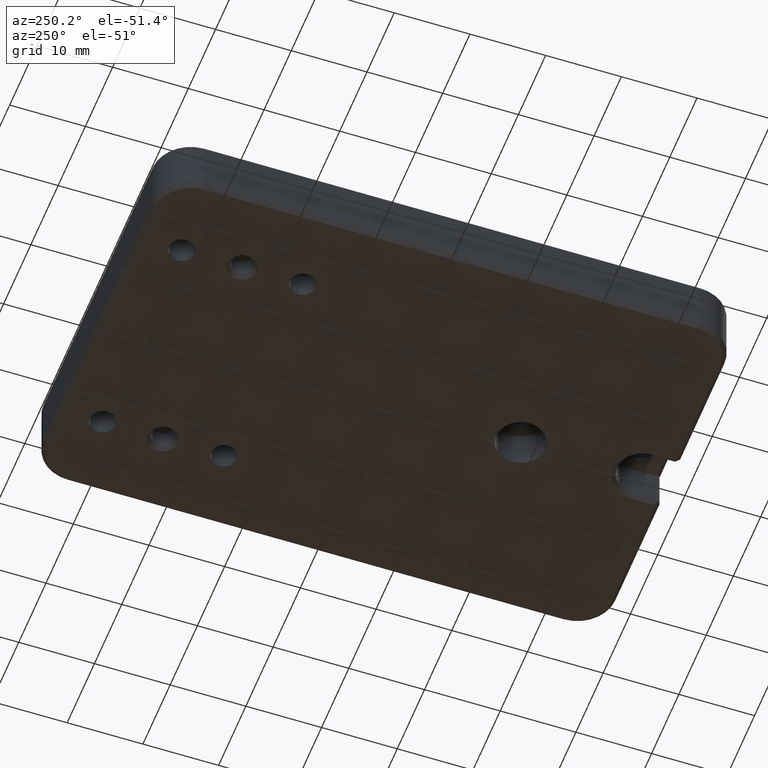
[diagram: clean part render]
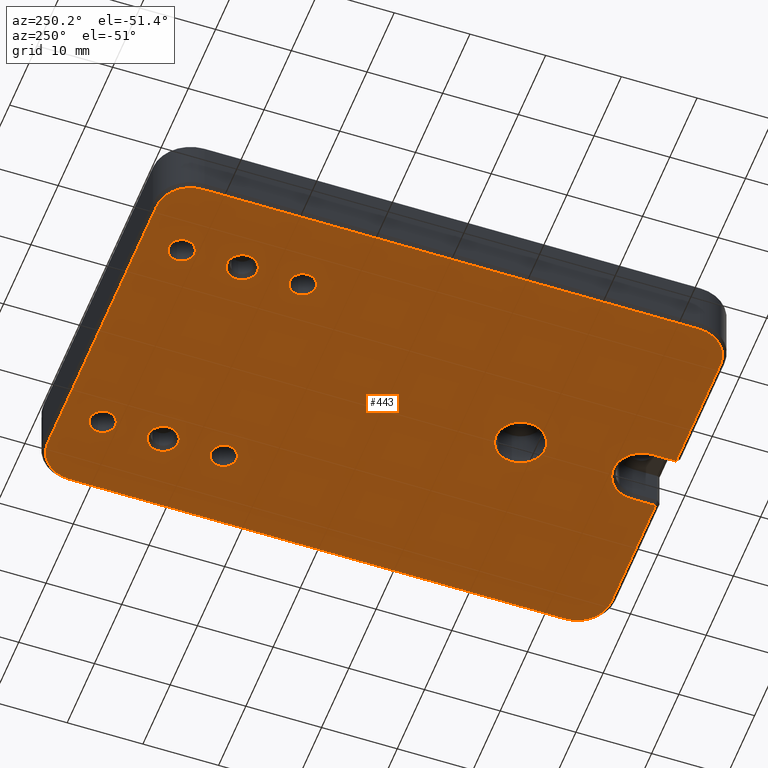
[diagram: same view with one face highlighted and labeled with its STEP entity id]
A machine part, auxiliary view. The second image highlights one B-rep face of the part: STEP entity #443.
In plain terms, the highlighted planar face has unit normal (-0, 0, 1).
Its self-contained STEP definition (entity closure, byte-faithful):
#2 = ORIENTED_EDGE ( 'NONE', *, *, #995, .F. ) ;
#7 = LINE ( 'NONE', #1161, #369 ) ;
#18 = DIRECTION ( 'NONE',  ( -0.0000000000000000000, -0.0000000000000000000, 1.000000000000000000 ) ) ;
#28 = CIRCLE ( 'NONE', #2100, 1.699999999999996625 ) ;
#29 = DIRECTION ( 'NONE',  ( 1.000000000000000000, 0.0000000000000000000, 0.0000000000000000000 ) ) ;
#61 = CARTESIAN_POINT ( 'NONE',  ( 16.50000000000000355, 13.70000000000000995, 0.0000000000000000000 ) ) ;
#78 = CARTESIAN_POINT ( 'NONE',  ( 16.19999999999999929, 21.70000000000000995, 0.0000000000000000000 ) ) ;
#95 = DIRECTION ( 'NONE',  ( -0.0000000000000000000, -0.0000000000000000000, 1.000000000000000000 ) ) ;
#101 = EDGE_LOOP ( 'NONE', ( #2399, #2411 ) ) ;
#102 = DIRECTION ( 'NONE',  ( 1.000000000000000000, 0.0000000000000000000, 0.0000000000000000000 ) ) ;
#107 = DIRECTION ( 'NONE',  ( -1.000000000000000000, 0.0000000000000000000, 0.0000000000000000000 ) ) ;
#120 = CARTESIAN_POINT ( 'NONE',  ( -0.0000000000000000000, -47.49999999999998579, 0.0000000000000000000 ) ) ;
#123 = ORIENTED_EDGE ( 'NONE', *, *, #2132, .F. ) ;
#138 = CARTESIAN_POINT ( 'NONE',  ( 14.50000000000000000, 13.70000000000000995, 0.0000000000000000000 ) ) ;
#143 = VECTOR ( 'NONE', #1930, 1000.000000000000000 ) ;
#152 = VERTEX_POINT ( 'NONE', #1647 ) ;
#154 = DIRECTION ( 'NONE',  ( -1.000000000000000000, 0.0000000000000000000, 0.0000000000000000000 ) ) ;
#159 = DIRECTION ( 'NONE',  ( 1.000000000000000000, 0.0000000000000000000, 0.0000000000000000000 ) ) ;
#172 = VERTEX_POINT ( 'NONE', #2427 ) ;
#174 = VERTEX_POINT ( 'NONE', #1249 ) ;
#176 = DIRECTION ( 'NONE',  ( 0.0000000000000000000, -1.000000000000000000, 0.0000000000000000000 ) ) ;
#184 = CARTESIAN_POINT ( 'NONE',  ( 19.99999999999998934, 27.00000000000000711, 0.0000000000000000000 ) ) ;
#189 = DIRECTION ( 'NONE',  ( 1.000000000000000000, 0.0000000000000000000, 0.0000000000000000000 ) ) ;
#200 = EDGE_LOOP ( 'NONE', ( #1064, #1283 ) ) ;
#208 = LINE ( 'NONE', #958, #143 ) ;
#212 = LINE ( 'NONE', #1747, #2284 ) ;
#221 = DIRECTION ( 'NONE',  ( 0.0000000000000000000, -0.0000000000000000000, -1.000000000000000000 ) ) ;
#232 = ORIENTED_EDGE ( 'NONE', *, *, #1875, .T. ) ;
#234 = VERTEX_POINT ( 'NONE', #2093 ) ;
#260 = FACE_BOUND ( 'NONE', #1550, .T. ) ;
#278 = ORIENTED_EDGE ( 'NONE', *, *, #1868, .T. ) ;
#297 = VECTOR ( 'NONE', #107, 1000.000000000000000 ) ;
#304 = DIRECTION ( 'NONE',  ( -0.0000000000000000000, 0.0000000000000000000, 1.000000000000000000 ) ) ;
#322 = EDGE_CURVE ( 'NONE', #1352, #152, #212, .T. ) ;
#340 = ORIENTED_EDGE ( 'NONE', *, *, #322, .T. ) ;
#347 = VERTEX_POINT ( 'NONE', #1532 ) ;
#367 = EDGE_CURVE ( 'NONE', #2124, #843, #1026, .T. ) ;
#369 = VECTOR ( 'NONE', #2303, 1000.000000000000000 ) ;
#370 = VERTEX_POINT ( 'NONE', #78 ) ;
#380 = CARTESIAN_POINT ( 'NONE',  ( -3.749999999999990230, -44.29999999999998295, 0.0000000000000000000 ) ) ;
#389 = EDGE_LOOP ( 'NONE', ( #1891, #2440 ) ) ;
#421 = CARTESIAN_POINT ( 'NONE',  ( 14.50000000000000178, 21.70000000000000995, 0.0000000000000000000 ) ) ;
#423 = DIRECTION ( 'NONE',  ( -0.0000000000000000000, -0.0000000000000000000, 1.000000000000000000 ) ) ;
#428 = CARTESIAN_POINT ( 'NONE',  ( 14.50000000000000533, 5.700000000000010836, 0.0000000000000000000 ) ) ;
#443 = ADVANCED_FACE ( 'NONE', ( #1795, #1973, #986, #260, #1808, #600, #1028, #1596 ), #1367, .F. ) ;
#445 = DIRECTION ( 'NONE',  ( 1.000000000000000000, 0.0000000000000000000, 0.0000000000000000000 ) ) ;
#450 = CARTESIAN_POINT ( 'NONE',  ( -14.49999999999999822, 5.700000000000007283, 0.0000000000000000000 ) ) ;
#463 = AXIS2_PLACEMENT_3D ( 'NONE', #1704, #1526, #189 ) ;
#475 = DIRECTION ( 'NONE',  ( -0.0000000000000000000, 0.0000000000000000000, 1.000000000000000000 ) ) ;
#495 = VERTEX_POINT ( 'NONE', #1077 ) ;
#517 = DIRECTION ( 'NONE',  ( -0.0000000000000000000, 0.0000000000000000000, 1.000000000000000000 ) ) ;
#528 = EDGE_CURVE ( 'NONE', #771, #2293, #1277, .T. ) ;
#596 = CARTESIAN_POINT ( 'NONE',  ( -3.249999999999991562, -28.29999999999998650, 0.0000000000000000000 ) ) ;
#600 = FACE_BOUND ( 'NONE', #200, .T. ) ;
#606 = EDGE_CURVE ( 'NONE', #495, #174, #962, .T. ) ;
#646 = CARTESIAN_POINT ( 'NONE',  ( -20.00000000000000711, 27.00000000000000711, 0.0000000000000000000 ) ) ;
#647 = LINE ( 'NONE', #1419, #1609 ) ;
#668 = DIRECTION ( 'NONE',  ( 1.000000000000000000, 0.0000000000000000000, 0.0000000000000000000 ) ) ;
#672 = EDGE_CURVE ( 'NONE', #172, #1226, #647, .T. ) ;
#679 = CARTESIAN_POINT ( 'NONE',  ( 12.80000000000000959, 5.700000000000010836, 0.0000000000000000000 ) ) ;
#681 = CARTESIAN_POINT ( 'NONE',  ( -14.49999999999999645, 13.70000000000000817, 0.0000000000000000000 ) ) ;
#686 = VERTEX_POINT ( 'NONE', #2342 ) ;
#694 = VECTOR ( 'NONE', #858, 1000.000000000000000 ) ;
#710 = CARTESIAN_POINT ( 'NONE',  ( 9.658863436427273713E-15, -44.29999999999998295, 0.0000000000000000000 ) ) ;
#720 = LINE ( 'NONE', #120, #297 ) ;
#734 = VECTOR ( 'NONE', #176, 1000.000000000000000 ) ;
#753 = CARTESIAN_POINT ( 'NONE',  ( -14.49999999999999822, 21.70000000000000639, 0.0000000000000000000 ) ) ;
#765 = CIRCLE ( 'NONE', #844, 1.699999999999998401 ) ;
#770 = CIRCLE ( 'NONE', #2431, 3.750000000000000000 ) ;
#771 = VERTEX_POINT ( 'NONE', #960 ) ;
#772 = CARTESIAN_POINT ( 'NONE',  ( -14.49999999999999822, 5.700000000000007283, 0.0000000000000000000 ) ) ;
#781 = ORIENTED_EDGE ( 'NONE', *, *, #1837, .T. ) ;
#794 = VERTEX_POINT ( 'NONE', #380 ) ;
#820 = ORIENTED_EDGE ( 'NONE', *, *, #1083, .T. ) ;
#829 = DIRECTION ( 'NONE',  ( -0.0000000000000000000, -0.0000000000000000000, -1.000000000000000000 ) ) ;
#839 = EDGE_CURVE ( 'NONE', #1041, #1271, #765, .T. ) ;
#840 = CARTESIAN_POINT ( 'NONE',  ( -12.49999999999998046, 13.70000000000000817, 0.0000000000000000000 ) ) ;
#843 = VERTEX_POINT ( 'NONE', #679 ) ;
#844 = AXIS2_PLACEMENT_3D ( 'NONE', #753, #1329, #1793 ) ;
#858 = DIRECTION ( 'NONE',  ( -1.000000000000000000, 0.0000000000000000000, 0.0000000000000000000 ) ) ;
#889 = AXIS2_PLACEMENT_3D ( 'NONE', #2448, #1656, #1256 ) ;
#901 = EDGE_CURVE ( 'NONE', #843, #2124, #2432, .T. ) ;
#903 = CARTESIAN_POINT ( 'NONE',  ( -16.19999999999999929, 21.70000000000000639, 0.0000000000000000000 ) ) ;
#908 = CARTESIAN_POINT ( 'NONE',  ( -0.0000000000000000000, -47.49999999999998579, 0.0000000000000000000 ) ) ;
#914 = DIRECTION ( 'NONE',  ( 0.0000000000000000000, -0.0000000000000000000, -1.000000000000000000 ) ) ;
#958 = CARTESIAN_POINT ( 'NONE',  ( -24.50000000000000355, -4.503388096575552782E-15, 0.0000000000000000000 ) ) ;
#959 = EDGE_LOOP ( 'NONE', ( #1545, #1967 ) ) ;
#960 = CARTESIAN_POINT ( 'NONE',  ( -16.50000000000001421, 13.70000000000000817, 0.0000000000000000000 ) ) ;
#962 = CIRCLE ( 'NONE', #1166, 1.699999999999998401 ) ;
#968 = CIRCLE ( 'NONE', #1816, 1.699999999999998401 ) ;
#971 = CIRCLE ( 'NONE', #2390, 4.500000000000000888 ) ;
#986 = FACE_OUTER_BOUND ( 'NONE', #1536, .T. ) ;
#995 = EDGE_CURVE ( 'NONE', #234, #1118, #1044, .T. ) ;
#1015 = CARTESIAN_POINT ( 'NONE',  ( 0.0000000000000000000, 0.0000000000000000000, 0.0000000000000000000 ) ) ;
#1026 = CIRCLE ( 'NONE', #2210, 1.699999999999996625 ) ;
#1028 = FACE_BOUND ( 'NONE', #389, .T. ) ;
#1033 = CARTESIAN_POINT ( 'NONE',  ( -12.80000000000000071, 21.70000000000000639, 0.0000000000000000000 ) ) ;
#1035 = DIRECTION ( 'NONE',  ( 1.000000000000000000, 0.0000000000000000000, 0.0000000000000000000 ) ) ;
#1038 = EDGE_CURVE ( 'NONE', #1752, #347, #2464, .T. ) ;
#1041 = VERTEX_POINT ( 'NONE', #903 ) ;
#1042 = CARTESIAN_POINT ( 'NONE',  ( 20.00000000000000000, -42.99999999999998579, 0.0000000000000000000 ) ) ;
#1044 = CIRCLE ( 'NONE', #2144, 3.249999999999999556 ) ;
#1059 = DIRECTION ( 'NONE',  ( 0.0000000000000000000, -0.0000000000000000000, -1.000000000000000000 ) ) ;
#1064 = ORIENTED_EDGE ( 'NONE', *, *, #1131, .T. ) ;
#1077 = CARTESIAN_POINT ( 'NONE',  ( -16.19999999999999929, 5.700000000000007283, 0.0000000000000000000 ) ) ;
#1083 = EDGE_CURVE ( 'NONE', #347, #1752, #1687, .T. ) ;
#1085 = ORIENTED_EDGE ( 'NONE', *, *, #2235, .T. ) ;
#1106 = ORIENTED_EDGE ( 'NONE', *, *, #2409, .T. ) ;
#1109 = ORIENTED_EDGE ( 'NONE', *, *, #367, .T. ) ;
#1112 = CARTESIAN_POINT ( 'NONE',  ( 7.699428557791508187E-15, -28.29999999999998650, 0.0000000000000000000 ) ) ;
#1118 = VERTEX_POINT ( 'NONE', #596 ) ;
#1121 = CARTESIAN_POINT ( 'NONE',  ( -20.00000000000000711, 22.50000000000000711, 0.0000000000000000000 ) ) ;
#1126 = CIRCLE ( 'NONE', #2302, 1.699999999999998401 ) ;
#1130 = AXIS2_PLACEMENT_3D ( 'NONE', #2047, #517, #2228 ) ;
#1131 = EDGE_CURVE ( 'NONE', #174, #495, #1126, .T. ) ;
#1156 = CARTESIAN_POINT ( 'NONE',  ( -3.749999999999990230, -47.49999999999998579, 0.0000000000000000000 ) ) ;
#1161 = CARTESIAN_POINT ( 'NONE',  ( -0.0000000000000000000, 27.00000000000000711, 0.0000000000000000000 ) ) ;
#1166 = AXIS2_PLACEMENT_3D ( 'NONE', #450, #423, #1035 ) ;
#1191 = EDGE_CURVE ( 'NONE', #1315, #1659, #7, .T. ) ;
#1204 = DIRECTION ( 'NONE',  ( -1.000000000000000000, 0.0000000000000000000, 0.0000000000000000000 ) ) ;
#1206 = ORIENTED_EDGE ( 'NONE', *, *, #1244, .T. ) ;
#1208 = EDGE_CURVE ( 'NONE', #1303, #1315, #1570, .T. ) ;
#1217 = CIRCLE ( 'NONE', #1576, 3.249999999999999556 ) ;
#1226 = VERTEX_POINT ( 'NONE', #1703 ) ;
#1244 = EDGE_CURVE ( 'NONE', #686, #1303, #208, .T. ) ;
#1249 = CARTESIAN_POINT ( 'NONE',  ( -12.80000000000000071, 5.700000000000007283, 0.0000000000000000000 ) ) ;
#1256 = DIRECTION ( 'NONE',  ( 1.000000000000000000, 0.0000000000000000000, 0.0000000000000000000 ) ) ;
#1271 = VERTEX_POINT ( 'NONE', #1033 ) ;
#1277 = CIRCLE ( 'NONE', #2120, 2.000000000000017319 ) ;
#1283 = ORIENTED_EDGE ( 'NONE', *, *, #606, .T. ) ;
#1286 = LINE ( 'NONE', #908, #694 ) ;
#1287 = EDGE_CURVE ( 'NONE', #2060, #370, #28, .T. ) ;
#1303 = VERTEX_POINT ( 'NONE', #1430 ) ;
#1312 = AXIS2_PLACEMENT_3D ( 'NONE', #1015, #2370, #102 ) ;
#1314 = CARTESIAN_POINT ( 'NONE',  ( -19.99999999999999289, -47.49999999999998579, 0.0000000000000000000 ) ) ;
#1315 = VERTEX_POINT ( 'NONE', #646 ) ;
#1317 = CARTESIAN_POINT ( 'NONE',  ( -3.749999999999990230, 0.0000000000000000000, 0.0000000000000000000 ) ) ;
#1329 = DIRECTION ( 'NONE',  ( -0.0000000000000000000, -0.0000000000000000000, 1.000000000000000000 ) ) ;
#1330 = AXIS2_PLACEMENT_3D ( 'NONE', #1121, #221, #29 ) ;
#1352 = VERTEX_POINT ( 'NONE', #1814 ) ;
#1367 = PLANE ( 'NONE',  #1312 ) ;
#1397 = CARTESIAN_POINT ( 'NONE',  ( 7.699428557791508187E-15, -28.29999999999998650, 0.0000000000000000000 ) ) ;
#1401 = DIRECTION ( 'NONE',  ( 1.000000000000000000, 0.0000000000000000000, 0.0000000000000000000 ) ) ;
#1403 = ORIENTED_EDGE ( 'NONE', *, *, #1208, .T. ) ;
#1404 = CARTESIAN_POINT ( 'NONE',  ( 14.50000000000000533, 5.700000000000010836, 0.0000000000000000000 ) ) ;
#1419 = CARTESIAN_POINT ( 'NONE',  ( 24.49999999999999645, 2.251694048287775997E-15, 0.0000000000000000000 ) ) ;
#1430 = CARTESIAN_POINT ( 'NONE',  ( -24.50000000000000711, 22.50000000000000711, 0.0000000000000000000 ) ) ;
#1483 = DIRECTION ( 'NONE',  ( 9.190587952195004572E-17, -1.000000000000000000, 0.0000000000000000000 ) ) ;
#1491 = DIRECTION ( 'NONE',  ( -0.0000000000000000000, -0.0000000000000000000, -1.000000000000000000 ) ) ;
#1492 = LINE ( 'NONE', #1317, #734 ) ;
#1520 = CARTESIAN_POINT ( 'NONE',  ( 14.50000000000000178, 21.70000000000000995, 0.0000000000000000000 ) ) ;
#1526 = DIRECTION ( 'NONE',  ( 0.0000000000000000000, -0.0000000000000000000, -1.000000000000000000 ) ) ;
#1527 = AXIS2_PLACEMENT_3D ( 'NONE', #1404, #1821, #1805 ) ;
#1532 = CARTESIAN_POINT ( 'NONE',  ( 12.49999999999999645, 13.70000000000000995, 0.0000000000000000000 ) ) ;
#1536 = EDGE_LOOP ( 'NONE', ( #278, #1085, #1959, #1106, #1206, #1403, #2329, #1945, #1762, #781, #232, #340 ) ) ;
#1545 = ORIENTED_EDGE ( 'NONE', *, *, #1707, .T. ) ;
#1550 = EDGE_LOOP ( 'NONE', ( #123, #2 ) ) ;
#1555 = DIRECTION ( 'NONE',  ( 1.000000000000000000, 0.0000000000000000000, 0.0000000000000000000 ) ) ;
#1559 = DIRECTION ( 'NONE',  ( -0.0000000000000000000, -0.0000000000000000000, 1.000000000000000000 ) ) ;
#1570 = CIRCLE ( 'NONE', #1330, 4.500000000000000888 ) ;
#1576 = AXIS2_PLACEMENT_3D ( 'NONE', #1397, #829, #1204 ) ;
#1584 = CARTESIAN_POINT ( 'NONE',  ( 16.20000000000000284, 5.700000000000010836, 0.0000000000000000000 ) ) ;
#1596 = FACE_BOUND ( 'NONE', #1718, .T. ) ;
#1608 = DIRECTION ( 'NONE',  ( 1.000000000000000000, 0.0000000000000000000, 0.0000000000000000000 ) ) ;
#1609 = VECTOR ( 'NONE', #1483, 1000.000000000000000 ) ;
#1610 = ORIENTED_EDGE ( 'NONE', *, *, #1038, .T. ) ;
#1616 = CIRCLE ( 'NONE', #1130, 2.000000000000017319 ) ;
#1640 = VERTEX_POINT ( 'NONE', #1314 ) ;
#1647 = CARTESIAN_POINT ( 'NONE',  ( 3.750000000000009326, -44.29999999999998295, 0.0000000000000000000 ) ) ;
#1656 = DIRECTION ( 'NONE',  ( -0.0000000000000000000, 0.0000000000000000000, 1.000000000000000000 ) ) ;
#1659 = VERTEX_POINT ( 'NONE', #184 ) ;
#1660 = CIRCLE ( 'NONE', #2434, 1.699999999999996625 ) ;
#1661 = DIRECTION ( 'NONE',  ( -0.0000000000000000000, 0.0000000000000000000, 1.000000000000000000 ) ) ;
#1687 = CIRCLE ( 'NONE', #889, 2.000000000000003553 ) ;
#1693 = CIRCLE ( 'NONE', #1899, 4.499999999999997335 ) ;
#1699 = VERTEX_POINT ( 'NONE', #1954 ) ;
#1703 = CARTESIAN_POINT ( 'NONE',  ( 24.50000000000000000, -42.99999999999998579, 0.0000000000000000000 ) ) ;
#1704 = CARTESIAN_POINT ( 'NONE',  ( -19.99999999999999289, -42.99999999999999289, 0.0000000000000000000 ) ) ;
#1707 = EDGE_CURVE ( 'NONE', #1271, #1041, #968, .T. ) ;
#1718 = EDGE_LOOP ( 'NONE', ( #1109, #2095 ) ) ;
#1747 = CARTESIAN_POINT ( 'NONE',  ( 3.750000000000009326, 0.0000000000000000000, 0.0000000000000000000 ) ) ;
#1752 = VERTEX_POINT ( 'NONE', #61 ) ;
#1762 = ORIENTED_EDGE ( 'NONE', *, *, #672, .T. ) ;
#1793 = DIRECTION ( 'NONE',  ( 1.000000000000000000, 0.0000000000000000000, 0.0000000000000000000 ) ) ;
#1795 = FACE_BOUND ( 'NONE', #101, .T. ) ;
#1805 = DIRECTION ( 'NONE',  ( 1.000000000000000000, 0.0000000000000000000, 0.0000000000000000000 ) ) ;
#1808 = FACE_BOUND ( 'NONE', #959, .T. ) ;
#1814 = CARTESIAN_POINT ( 'NONE',  ( 3.750000000000009326, -47.49999999999998579, 0.0000000000000000000 ) ) ;
#1816 = AXIS2_PLACEMENT_3D ( 'NONE', #1966, #2349, #445 ) ;
#1821 = DIRECTION ( 'NONE',  ( -0.0000000000000000000, -0.0000000000000000000, 1.000000000000000000 ) ) ;
#1824 = EDGE_CURVE ( 'NONE', #2293, #771, #1616, .T. ) ;
#1837 = EDGE_CURVE ( 'NONE', #1226, #1699, #1693, .T. ) ;
#1862 = CARTESIAN_POINT ( 'NONE',  ( 19.99999999999998934, 22.50000000000000711, 0.0000000000000000000 ) ) ;
#1868 = EDGE_CURVE ( 'NONE', #152, #794, #770, .T. ) ;
#1873 = DIRECTION ( 'NONE',  ( 1.000000000000000000, 0.0000000000000000000, 0.0000000000000000000 ) ) ;
#1875 = EDGE_CURVE ( 'NONE', #1699, #1352, #1286, .T. ) ;
#1891 = ORIENTED_EDGE ( 'NONE', *, *, #2017, .T. ) ;
#1899 = AXIS2_PLACEMENT_3D ( 'NONE', #1042, #1059, #2443 ) ;
#1903 = CARTESIAN_POINT ( 'NONE',  ( 12.80000000000000604, 21.70000000000000995, 0.0000000000000000000 ) ) ;
#1918 = EDGE_CURVE ( 'NONE', #1965, #1640, #720, .T. ) ;
#1930 = DIRECTION ( 'NONE',  ( -1.838117590439000914E-16, 1.000000000000000000, 0.0000000000000000000 ) ) ;
#1945 = ORIENTED_EDGE ( 'NONE', *, *, #2337, .T. ) ;
#1954 = CARTESIAN_POINT ( 'NONE',  ( 20.00000000000000355, -47.49999999999997868, 0.0000000000000000000 ) ) ;
#1959 = ORIENTED_EDGE ( 'NONE', *, *, #1918, .T. ) ;
#1962 = DIRECTION ( 'NONE',  ( 1.000000000000000000, 0.0000000000000000000, 0.0000000000000000000 ) ) ;
#1965 = VERTEX_POINT ( 'NONE', #1156 ) ;
#1966 = CARTESIAN_POINT ( 'NONE',  ( -14.49999999999999822, 21.70000000000000639, 0.0000000000000000000 ) ) ;
#1967 = ORIENTED_EDGE ( 'NONE', *, *, #839, .T. ) ;
#1973 = FACE_BOUND ( 'NONE', #2031, .T. ) ;
#2017 = EDGE_CURVE ( 'NONE', #370, #2060, #1660, .T. ) ;
#2031 = EDGE_LOOP ( 'NONE', ( #820, #1610 ) ) ;
#2047 = CARTESIAN_POINT ( 'NONE',  ( -14.49999999999999645, 13.70000000000000817, 0.0000000000000000000 ) ) ;
#2060 = VERTEX_POINT ( 'NONE', #1903 ) ;
#2084 = DIRECTION ( 'NONE',  ( 1.000000000000000000, 0.0000000000000000000, 0.0000000000000000000 ) ) ;
#2093 = CARTESIAN_POINT ( 'NONE',  ( 3.250000000000007105, -28.29999999999998650, 0.0000000000000000000 ) ) ;
#2095 = ORIENTED_EDGE ( 'NONE', *, *, #901, .T. ) ;
#2100 = AXIS2_PLACEMENT_3D ( 'NONE', #421, #95, #1401 ) ;
#2120 = AXIS2_PLACEMENT_3D ( 'NONE', #681, #1661, #668 ) ;
#2124 = VERTEX_POINT ( 'NONE', #1584 ) ;
#2132 = EDGE_CURVE ( 'NONE', #1118, #234, #1217, .T. ) ;
#2144 = AXIS2_PLACEMENT_3D ( 'NONE', #1112, #1491, #154 ) ;
#2210 = AXIS2_PLACEMENT_3D ( 'NONE', #428, #1559, #1962 ) ;
#2228 = DIRECTION ( 'NONE',  ( 1.000000000000000000, 0.0000000000000000000, 0.0000000000000000000 ) ) ;
#2235 = EDGE_CURVE ( 'NONE', #794, #1965, #1492, .T. ) ;
#2259 = DIRECTION ( 'NONE',  ( -0.0000000000000000000, -0.0000000000000000000, 1.000000000000000000 ) ) ;
#2284 = VECTOR ( 'NONE', #2296, 1000.000000000000000 ) ;
#2293 = VERTEX_POINT ( 'NONE', #840 ) ;
#2296 = DIRECTION ( 'NONE',  ( 0.0000000000000000000, 1.000000000000000000, 0.0000000000000000000 ) ) ;
#2302 = AXIS2_PLACEMENT_3D ( 'NONE', #772, #18, #1555 ) ;
#2303 = DIRECTION ( 'NONE',  ( 1.000000000000000000, 0.0000000000000000000, 0.0000000000000000000 ) ) ;
#2329 = ORIENTED_EDGE ( 'NONE', *, *, #1191, .T. ) ;
#2337 = EDGE_CURVE ( 'NONE', #1659, #172, #971, .T. ) ;
#2342 = CARTESIAN_POINT ( 'NONE',  ( -24.49999999999999645, -42.99999999999998579, 0.0000000000000000000 ) ) ;
#2349 = DIRECTION ( 'NONE',  ( -0.0000000000000000000, -0.0000000000000000000, 1.000000000000000000 ) ) ;
#2370 = DIRECTION ( 'NONE',  ( -0.0000000000000000000, 0.0000000000000000000, 1.000000000000000000 ) ) ;
#2390 = AXIS2_PLACEMENT_3D ( 'NONE', #1862, #914, #1608 ) ;
#2399 = ORIENTED_EDGE ( 'NONE', *, *, #528, .T. ) ;
#2409 = EDGE_CURVE ( 'NONE', #1640, #686, #2474, .T. ) ;
#2411 = ORIENTED_EDGE ( 'NONE', *, *, #1824, .T. ) ;
#2427 = CARTESIAN_POINT ( 'NONE',  ( 24.49999999999998934, 22.50000000000000711, 0.0000000000000000000 ) ) ;
#2431 = AXIS2_PLACEMENT_3D ( 'NONE', #710, #475, #159 ) ;
#2432 = CIRCLE ( 'NONE', #1527, 1.699999999999996625 ) ;
#2434 = AXIS2_PLACEMENT_3D ( 'NONE', #1520, #2259, #2084 ) ;
#2440 = ORIENTED_EDGE ( 'NONE', *, *, #1287, .T. ) ;
#2443 = DIRECTION ( 'NONE',  ( 1.000000000000000000, 0.0000000000000000000, 0.0000000000000000000 ) ) ;
#2448 = CARTESIAN_POINT ( 'NONE',  ( 14.50000000000000000, 13.70000000000000995, 0.0000000000000000000 ) ) ;
#2464 = CIRCLE ( 'NONE', #2466, 2.000000000000003553 ) ;
#2466 = AXIS2_PLACEMENT_3D ( 'NONE', #138, #304, #1873 ) ;
#2474 = CIRCLE ( 'NONE', #463, 4.500000000000000888 ) ;